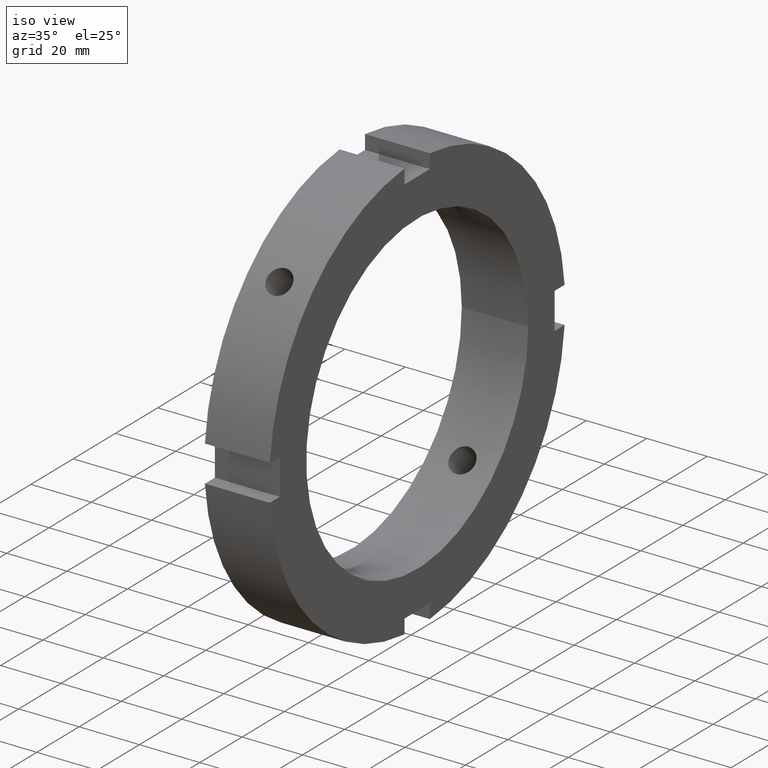
[diagram: clean part render]
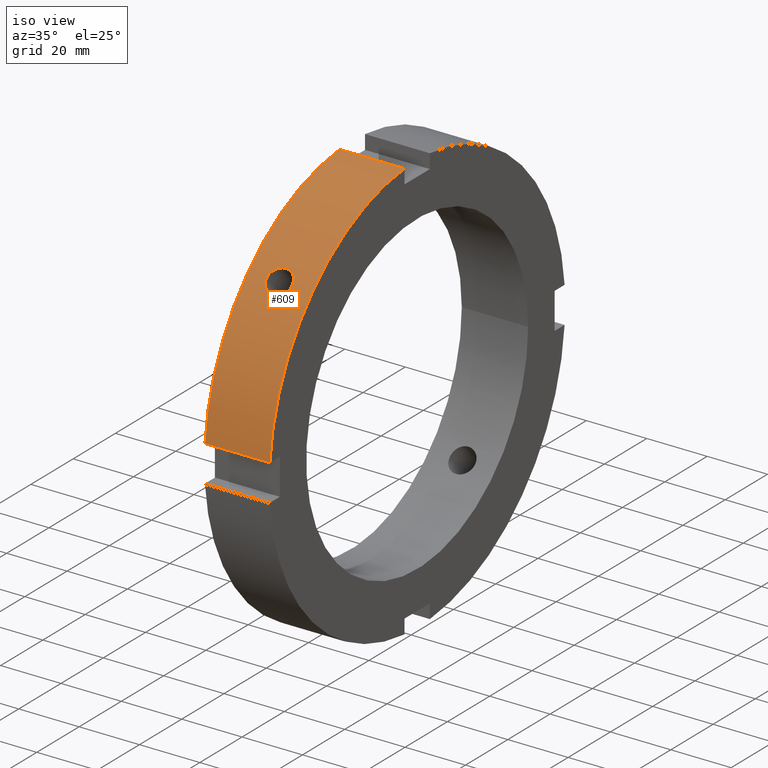
[diagram: same view with one face highlighted and labeled with its STEP entity id]
A machine part, iso view. The second image highlights one B-rep face of the part: STEP entity #609.
In plain terms, the highlighted cylindrical surface (partial cylindrical patch) has radius 70 mm, axis along (1, 0, 0).
Its self-contained STEP definition (entity closure, byte-faithful):
#73=CARTESIAN_POINT('',(10.999999999999993,-52.370171402195965,46.447445002977460));
#74=VERTEX_POINT('',#73);
#75=CARTESIAN_POINT('',(10.999999999999993,-52.370171402195957,46.447445002977474));
#76=CARTESIAN_POINT('',(10.474010516351766,-52.370171402195957,46.447445002977474));
#77=CARTESIAN_POINT('',(9.913047178265046,-52.300454593118900,46.526425454325079));
#78=CARTESIAN_POINT('',(8.881247715706451,-52.014940726473796,46.845402734465864));
#79=CARTESIAN_POINT('',(8.410400930945345,-51.798907228599440,47.085153353165268));
#80=CARTESIAN_POINT('',(7.666872830992110,-51.295415509571136,47.633169157096312));
#81=CARTESIAN_POINT('',(7.344584668843705,-50.974325797902438,47.977957456776956));
#82=CARTESIAN_POINT('',(6.917144779185016,-50.261443749687238,48.724260532818889));
#83=CARTESIAN_POINT('',(6.811999999999995,-49.869405252550578,49.125544113566079));
#84=CARTESIAN_POINT('',(6.811999999999988,-49.125544113566079,49.869405252550592));
#85=CARTESIAN_POINT('',(6.917144779185004,-48.724260532818889,50.261443749687238));
#86=CARTESIAN_POINT('',(7.344584668843682,-47.977957456776934,50.974325797902445));
#87=CARTESIAN_POINT('',(7.666872830992112,-47.633169157096312,51.295415509571150));
#88=CARTESIAN_POINT('',(8.410400930945343,-47.085153353165261,51.798907228599461));
#89=CARTESIAN_POINT('',(8.881247715706447,-46.845402734465836,52.014940726473824));
#90=CARTESIAN_POINT('',(9.913047178265044,-46.526425454325057,52.300454593118928));
#91=CARTESIAN_POINT('',(10.474010516351765,-46.447445002977439,52.370171402195986));
#92=CARTESIAN_POINT('',(11.525989483648223,-46.447445002977439,52.370171402195986));
#93=CARTESIAN_POINT('',(12.086952821734949,-46.526425454325064,52.300454593118921));
#94=CARTESIAN_POINT('',(13.118752284293549,-46.845402734465850,52.014940726473817));
#95=CARTESIAN_POINT('',(13.589599069054641,-47.085153353165261,51.798907228599461));
#96=CARTESIAN_POINT('',(14.333127169007870,-47.633169157096312,51.295415509571150));
#97=CARTESIAN_POINT('',(14.655415331156302,-47.977957456776934,50.974325797902452));
#98=CARTESIAN_POINT('',(15.082855220814984,-48.724260532818889,50.261443749687245));
#99=CARTESIAN_POINT('',(15.187999999999997,-49.125544113566079,49.869405252550592));
#100=CARTESIAN_POINT('',(15.187999999999988,-49.869405252550578,49.125544113566079));
#101=CARTESIAN_POINT('',(15.082855220814972,-50.261443749687231,48.724260532818889));
#102=CARTESIAN_POINT('',(14.655415331156282,-50.974325797902438,47.977957456776956));
#103=CARTESIAN_POINT('',(14.333127169007874,-51.295415509571136,47.633169157096312));
#104=CARTESIAN_POINT('',(13.589599069054636,-51.798907228599440,47.085153353165268));
#105=CARTESIAN_POINT('',(13.118752284293528,-52.014940726473796,46.845402734465864));
#106=CARTESIAN_POINT('',(12.086952821734933,-52.300454593118900,46.526425454325079));
#107=CARTESIAN_POINT('',(11.525989483648216,-52.370171402195957,46.447445002977474));
#108=CARTESIAN_POINT('',(10.999999999999989,-52.370171402195957,46.447445002977474));
#109=B_SPLINE_CURVE_WITH_KNOTS('',3,(#75,#76,#77,#78,#79,#80,#81,#82,#83,#84,#85,#86,#87,#88,#89,#90,#91,#92,#93,#94,#95,#96,#97,#98,#99,#100,#101,#102,#103,#104,#105,#106,#107,#108),.UNSPECIFIED.,.T.,.U.,(4,2,2,2,2,2,2,2,2,2,2,2,2,2,2,2,4),(0.0,0.157796845094468,0.315593690188936,0.473390466880065,0.631187243571194,0.788984020262323,0.946780796953452,1.104577642047921,1.262374487142389,1.420171332236858,1.577968177331327,1.735764954022456,1.893561730713585,2.051358507404714,2.209155284095843,2.366952129190311,2.524748974284779),.UNSPECIFIED.);
#110=EDGE_CURVE('',#74,#74,#109,.T.);
#353=CARTESIAN_POINT('',(0.499999999999980,-69.742383096650769,6.000000000000007));
#354=VERTEX_POINT('',#353);
#369=CARTESIAN_POINT('',(21.999999999999989,-69.742383096650769,6.000000000000007));
#370=VERTEX_POINT('',#369);
#377=CARTESIAN_POINT('',(0.499999999999980,-69.742383096650769,6.000000000000009));
#378=DIRECTION('',(1.0,0.0,0.0));
#379=VECTOR('',#378,21.500000000000007);
#380=LINE('',#377,#379);
#381=EDGE_CURVE('',#354,#370,#380,.T.);
#493=CARTESIAN_POINT('',(0.499999999999980,-5.999999999999995,69.742383096650769));
#494=VERTEX_POINT('',#493);
#503=CARTESIAN_POINT('',(21.999999999999989,-5.999999999999995,69.742383096650769));
#504=VERTEX_POINT('',#503);
#505=CARTESIAN_POINT('',(21.999999999999989,-5.999999999999995,69.742383096650769));
#506=DIRECTION('',(-1.0,0.0,0.0));
#507=VECTOR('',#506,21.500000000000007);
#508=LINE('',#505,#507);
#509=EDGE_CURVE('',#504,#494,#508,.T.);
#583=CARTESIAN_POINT('',(11.249999999999982,0.0,0.0));
#584=DIRECTION('',(1.0,0.0,0.0));
#585=DIRECTION('',(0.0,1.0,0.0));
#586=AXIS2_PLACEMENT_3D('',#583,#584,#585);
#587=CYLINDRICAL_SURFACE('',#586,70.0);
#588=ORIENTED_EDGE('',*,*,#381,.T.);
#589=CARTESIAN_POINT('',(21.999999999999986,0.0,0.0));
#590=DIRECTION('',(1.0,0.0,0.0));
#591=DIRECTION('',(0.0,1.0,0.0));
#592=AXIS2_PLACEMENT_3D('',#589,#590,#591);
#593=CIRCLE('',#592,70.0);
#594=EDGE_CURVE('',#504,#370,#593,.T.);
#595=ORIENTED_EDGE('',*,*,#594,.F.);
#596=ORIENTED_EDGE('',*,*,#509,.T.);
#597=CARTESIAN_POINT('',(0.499999999999980,0.0,0.0));
#598=DIRECTION('',(1.0,0.0,0.0));
#599=DIRECTION('',(0.0,1.0,0.0));
#600=AXIS2_PLACEMENT_3D('',#597,#598,#599);
#601=CIRCLE('',#600,70.0);
#602=EDGE_CURVE('',#494,#354,#601,.T.);
#603=ORIENTED_EDGE('',*,*,#602,.T.);
#604=EDGE_LOOP('',(#588,#595,#596,#603));
#605=FACE_OUTER_BOUND('',#604,.T.);
#606=ORIENTED_EDGE('',*,*,#110,.T.);
#607=EDGE_LOOP('',(#606));
#608=FACE_BOUND('',#607,.T.);
#609=ADVANCED_FACE('',(#605,#608),#587,.T.);